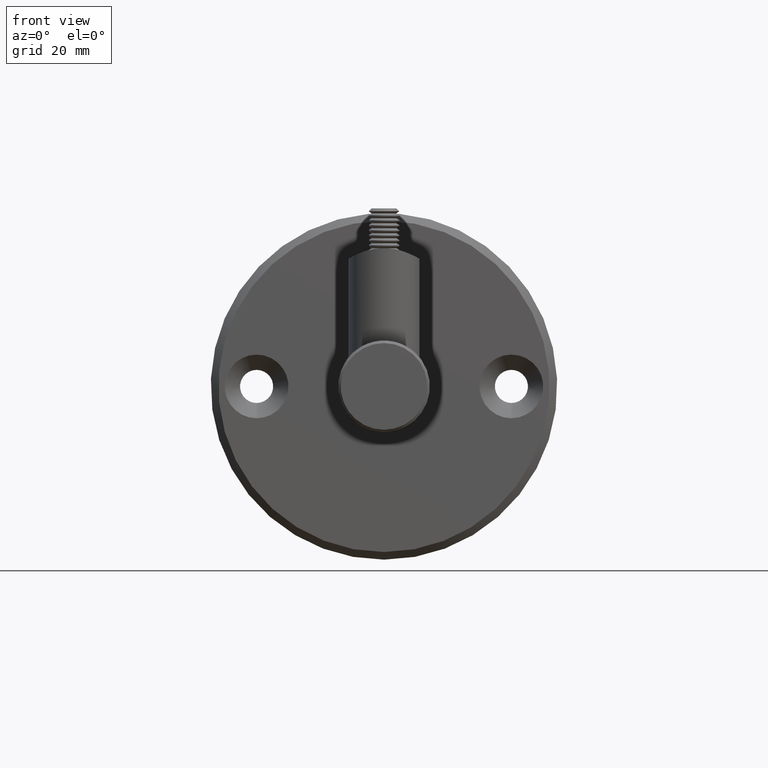
[diagram: clean part render]
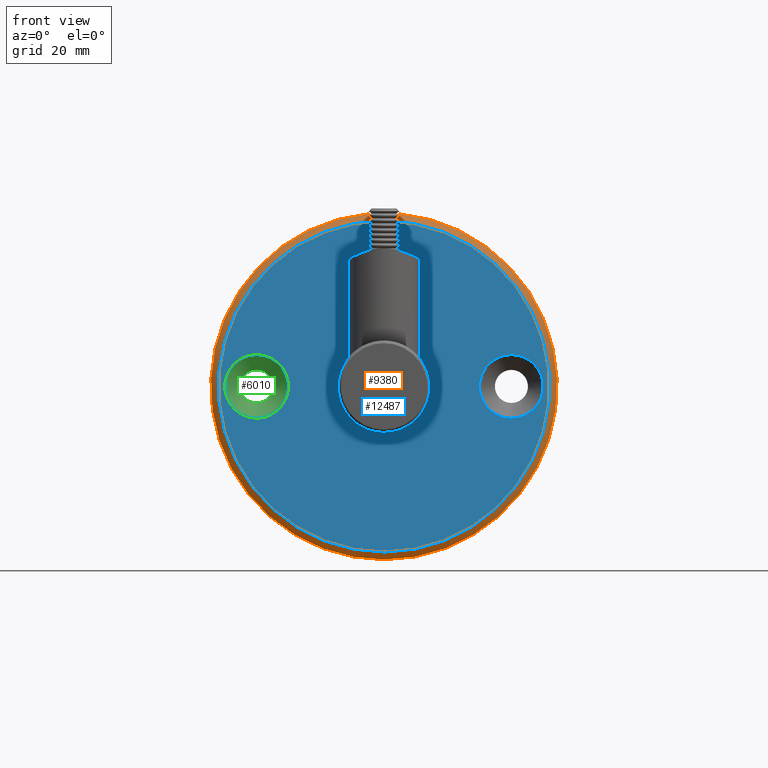
[diagram: same view with three faces highlighted in distinct colors, each labeled with its STEP entity id]
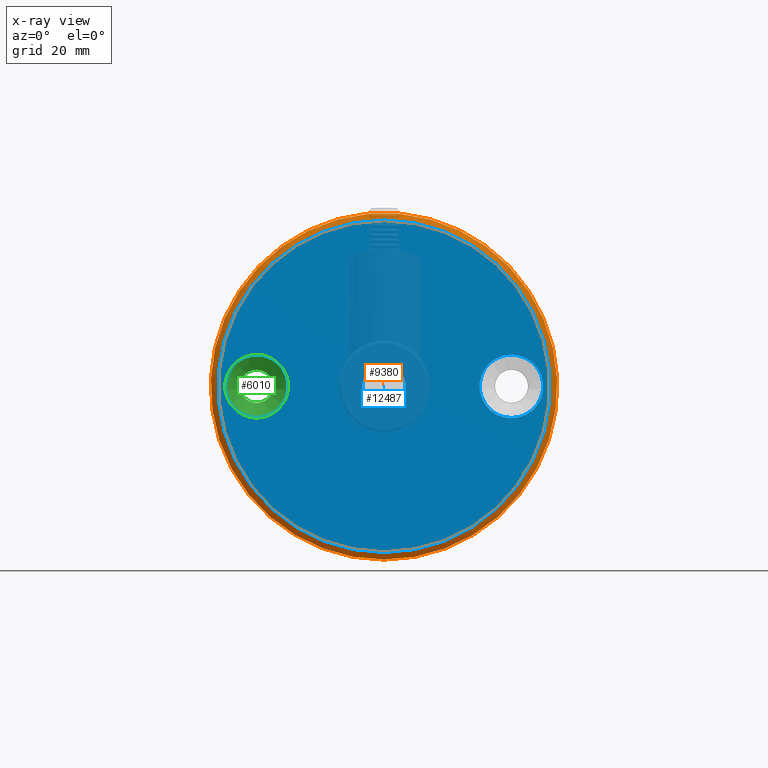
[diagram: x-ray of the same camera — body ghosted, the three highlighted faces saturated]
A machine part, front view with three faces highlighted in distinct colors.
The next image is the same camera in x-ray (body ghosted, the three faces saturated) — at least one of them is partly hidden behind the body in this view.
Their STEP definitions:

[orange] entity #9380 — the highlighted conical surface has half-angle 45 deg.
#1943 = EDGE_CURVE ( 'NONE', #5037, #5037, #4121, .T. ) ;
#2185 = FACE_OUTER_BOUND ( 'NONE', #2712, .T. ) ;
#2372 = CIRCLE ( 'NONE', #3714, 32.50000000000000000 ) ;
#2712 = EDGE_LOOP ( 'NONE', ( #2730 ) ) ;
#2713 = ORIENTED_EDGE ( 'NONE', *, *, #11402, .F. ) ;
#2730 = ORIENTED_EDGE ( 'NONE', *, *, #1943, .F. ) ;
#3714 = AXIS2_PLACEMENT_3D ( 'NONE', #7526, #11966, #6055 ) ;
#3912 = AXIS2_PLACEMENT_3D ( 'NONE', #15755, #15875, #18025 ) ;
#4121 = CIRCLE ( 'NONE', #3912, 34.00000000000000000 ) ;
#4123 = EDGE_LOOP ( 'NONE', ( #2713 ) ) ;
#5037 = VERTEX_POINT ( 'NONE', #7330 ) ;
#5612 = CARTESIAN_POINT ( 'NONE',  ( 0.0000000000000000000, 0.0000000000000000000, 3.000000000000000000 ) ) ;
#6055 = DIRECTION ( 'NONE',  ( 1.000000000000000000, 0.0000000000000000000, 0.0000000000000000000 ) ) ;
#6425 = CARTESIAN_POINT ( 'NONE',  ( 32.50000000000000000, 0.0000000000000000000, 3.000000000000000000 ) ) ;
#7330 = CARTESIAN_POINT ( 'NONE',  ( 34.00000000000000000, 0.0000000000000000000, 1.499999999999984700 ) ) ;
#7526 = CARTESIAN_POINT ( 'NONE',  ( 0.0000000000000000000, 0.0000000000000000000, 3.000000000000000000 ) ) ;
#8153 = FACE_BOUND ( 'NONE', #4123, .T. ) ;
#9380 = ADVANCED_FACE ( 'NONE', ( #2185, #8153 ), #18883, .T. ) ;
#10009 = DIRECTION ( 'NONE',  ( -1.000000000000000000, 0.0000000000000000000, 0.0000000000000000000 ) ) ;
#11402 = EDGE_CURVE ( 'NONE', #12143, #12143, #2372, .T. ) ;
#11966 = DIRECTION ( 'NONE',  ( 0.0000000000000000000, 0.0000000000000000000, 1.000000000000000000 ) ) ;
#12143 = VERTEX_POINT ( 'NONE', #6425 ) ;
#14335 = DIRECTION ( 'NONE',  ( 0.0000000000000000000, 0.0000000000000000000, -1.000000000000000000 ) ) ;
#14610 = AXIS2_PLACEMENT_3D ( 'NONE', #5612, #14335, #10009 ) ;
#15755 = CARTESIAN_POINT ( 'NONE',  ( 0.0000000000000000000, 0.0000000000000000000, 1.499999999999984700 ) ) ;
#15875 = DIRECTION ( 'NONE',  ( 0.0000000000000000000, 0.0000000000000000000, -1.000000000000000000 ) ) ;
#18025 = DIRECTION ( 'NONE',  ( 1.000000000000000000, 0.0000000000000000000, 0.0000000000000000000 ) ) ;
#18883 = CONICAL_SURFACE ( 'NONE', #14610, 32.50000000000000000, 0.7853981633974437300 ) ;

[blue] entity #12487 — the highlighted planar face has unit normal (0, -1, 0).
#1720 = CARTESIAN_POINT ( 'NONE',  ( 6.250000000000006200, 25.00000000000000000, 3.000000000000000000 ) ) ;
#1741 = CARTESIAN_POINT ( 'NONE',  ( 5.640276577966111500E-015, -25.00000000000000000, 3.000000000000000000 ) ) ;
#2372 = CIRCLE ( 'NONE', #3714, 32.50000000000000000 ) ;
#2457 = DIRECTION ( 'NONE',  ( 1.000000000000000000, 0.0000000000000000000, -0.0000000000000000000 ) ) ;
#3152 = VERTEX_POINT ( 'NONE', #14028 ) ;
#3268 = DIRECTION ( 'NONE',  ( -0.0000000000000000000, -0.0000000000000000000, 1.000000000000000000 ) ) ;
#3714 = AXIS2_PLACEMENT_3D ( 'NONE', #7526, #11966, #6055 ) ;
#3777 = AXIS2_PLACEMENT_3D ( 'NONE', #13483, #6127, #7595 ) ;
#4264 = ORIENTED_EDGE ( 'NONE', *, *, #18686, .F. ) ;
#4547 = VERTEX_POINT ( 'NONE', #1720 ) ;
#4554 = EDGE_LOOP ( 'NONE', ( #4264 ) ) ;
#4997 = CARTESIAN_POINT ( 'NONE',  ( 5.640276577966111500E-015, 25.00000000000000000, 3.000000000000000000 ) ) ;
#5271 = DIRECTION ( 'NONE',  ( 0.0000000000000000000, 0.0000000000000000000, 1.000000000000000000 ) ) ;
#5727 = ORIENTED_EDGE ( 'NONE', *, *, #8517, .F. ) ;
#5828 = CIRCLE ( 'NONE', #7403, 6.250000000000000000 ) ;
#6055 = DIRECTION ( 'NONE',  ( 1.000000000000000000, 0.0000000000000000000, 0.0000000000000000000 ) ) ;
#6127 = DIRECTION ( 'NONE',  ( 0.0000000000000000000, 0.0000000000000000000, 1.000000000000000000 ) ) ;
#6250 = DIRECTION ( 'NONE',  ( 1.000000000000000000, 0.0000000000000000000, 0.0000000000000000000 ) ) ;
#6425 = CARTESIAN_POINT ( 'NONE',  ( 32.50000000000000000, 0.0000000000000000000, 3.000000000000000000 ) ) ;
#6569 = DIRECTION ( 'NONE',  ( 1.000000000000000000, 0.0000000000000000000, 0.0000000000000000000 ) ) ;
#6749 = FACE_OUTER_BOUND ( 'NONE', #7118, .T. ) ;
#7118 = EDGE_LOOP ( 'NONE', ( #9639 ) ) ;
#7403 = AXIS2_PLACEMENT_3D ( 'NONE', #4997, #18161, #6569 ) ;
#7499 = CIRCLE ( 'NONE', #13769, 6.250000000000000000 ) ;
#7526 = CARTESIAN_POINT ( 'NONE',  ( 0.0000000000000000000, 0.0000000000000000000, 3.000000000000000000 ) ) ;
#7595 = DIRECTION ( 'NONE',  ( 1.000000000000000000, 0.0000000000000000000, 0.0000000000000000000 ) ) ;
#8517 = EDGE_CURVE ( 'NONE', #17126, #17126, #7499, .T. ) ;
#8999 = FACE_BOUND ( 'NONE', #4554, .T. ) ;
#9478 = FACE_BOUND ( 'NONE', #17347, .T. ) ;
#9639 = ORIENTED_EDGE ( 'NONE', *, *, #11402, .T. ) ;
#10191 = EDGE_CURVE ( 'NONE', #4547, #4547, #5828, .T. ) ;
#11263 = PLANE ( 'NONE',  #14998 ) ;
#11402 = EDGE_CURVE ( 'NONE', #12143, #12143, #2372, .T. ) ;
#11507 = CIRCLE ( 'NONE', #3777, 4.249999999999999100 ) ;
#11966 = DIRECTION ( 'NONE',  ( 0.0000000000000000000, 0.0000000000000000000, 1.000000000000000000 ) ) ;
#12101 = EDGE_LOOP ( 'NONE', ( #18731 ) ) ;
#12143 = VERTEX_POINT ( 'NONE', #6425 ) ;
#12487 = ADVANCED_FACE ( 'NONE', ( #8999, #6749, #15621, #9478 ), #11263, .T. ) ;
#13483 = CARTESIAN_POINT ( 'NONE',  ( 0.0000000000000000000, 0.0000000000000000000, 3.000000000000000000 ) ) ;
#13769 = AXIS2_PLACEMENT_3D ( 'NONE', #1741, #3268, #6250 ) ;
#14028 = CARTESIAN_POINT ( 'NONE',  ( 4.249999999999999100, 0.0000000000000000000, 3.000000000000000000 ) ) ;
#14663 = CARTESIAN_POINT ( 'NONE',  ( 6.250000000000006200, -25.00000000000000000, 3.000000000000000000 ) ) ;
#14998 = AXIS2_PLACEMENT_3D ( 'NONE', #18367, #5271, #2457 ) ;
#15621 = FACE_BOUND ( 'NONE', #12101, .T. ) ;
#17126 = VERTEX_POINT ( 'NONE', #14663 ) ;
#17347 = EDGE_LOOP ( 'NONE', ( #5727 ) ) ;
#18161 = DIRECTION ( 'NONE',  ( -0.0000000000000000000, -0.0000000000000000000, 1.000000000000000000 ) ) ;
#18367 = CARTESIAN_POINT ( 'NONE',  ( 0.0000000000000000000, 0.0000000000000000000, 3.000000000000000000 ) ) ;
#18686 = EDGE_CURVE ( 'NONE', #3152, #3152, #11507, .T. ) ;
#18731 = ORIENTED_EDGE ( 'NONE', *, *, #10191, .F. ) ;

[green] entity #6010 — the highlighted conical surface has half-angle 45 deg.
#817 = DIRECTION ( 'NONE',  ( 1.000000000000000000, 0.0000000000000000000, 0.0000000000000000000 ) ) ;
#841 = EDGE_CURVE ( 'NONE', #11269, #11269, #11191, .T. ) ;
#910 = FACE_BOUND ( 'NONE', #1970, .T. ) ;
#1970 = EDGE_LOOP ( 'NONE', ( #7795 ) ) ;
#3540 = CARTESIAN_POINT ( 'NONE',  ( 5.640276577966111500E-015, -25.00000000000000000, 1.800000000000000300 ) ) ;
#3638 = FACE_OUTER_BOUND ( 'NONE', #12514, .T. ) ;
#3996 = CARTESIAN_POINT ( 'NONE',  ( 5.640276577966111500E-015, -25.00000000000000000, -1.199999999999995300 ) ) ;
#4321 = ORIENTED_EDGE ( 'NONE', *, *, #12356, .T. ) ;
#4749 = DIRECTION ( 'NONE',  ( -0.0000000000000000000, -0.0000000000000000000, 1.000000000000000000 ) ) ;
#5570 = CARTESIAN_POINT ( 'NONE',  ( 3.250000000000006200, -25.00000000000000000, -1.199999999999995300 ) ) ;
#6010 = ADVANCED_FACE ( 'NONE', ( #910, #3638 ), #10083, .F. ) ;
#6257 = CARTESIAN_POINT ( 'NONE',  ( 5.640276577966111500E-015, -25.00000000000000000, 1.800000000000000300 ) ) ;
#7753 = CARTESIAN_POINT ( 'NONE',  ( 6.250000000000006200, -25.00000000000000000, 1.800000000000000300 ) ) ;
#7795 = ORIENTED_EDGE ( 'NONE', *, *, #841, .F. ) ;
#8048 = DIRECTION ( 'NONE',  ( -0.0000000000000000000, -0.0000000000000000000, 1.000000000000000000 ) ) ;
#8316 = CIRCLE ( 'NONE', #16800, 6.250000000000000000 ) ;
#8679 = VERTEX_POINT ( 'NONE', #7753 ) ;
#9733 = DIRECTION ( 'NONE',  ( 1.000000000000000000, 0.0000000000000000000, 0.0000000000000000000 ) ) ;
#10083 = CONICAL_SURFACE ( 'NONE', #11072, 6.250000000000000000, 0.7853981633974489500 ) ;
#11072 = AXIS2_PLACEMENT_3D ( 'NONE', #3540, #8048, #817 ) ;
#11191 = CIRCLE ( 'NONE', #13380, 3.250000000000000900 ) ;
#11269 = VERTEX_POINT ( 'NONE', #5570 ) ;
#12356 = EDGE_CURVE ( 'NONE', #8679, #8679, #8316, .T. ) ;
#12514 = EDGE_LOOP ( 'NONE', ( #4321 ) ) ;
#12801 = DIRECTION ( 'NONE',  ( -0.0000000000000000000, -0.0000000000000000000, 1.000000000000000000 ) ) ;
#13380 = AXIS2_PLACEMENT_3D ( 'NONE', #3996, #12801, #9733 ) ;
#16447 = DIRECTION ( 'NONE',  ( 1.000000000000000000, 0.0000000000000000000, 0.0000000000000000000 ) ) ;
#16800 = AXIS2_PLACEMENT_3D ( 'NONE', #6257, #4749, #16447 ) ;